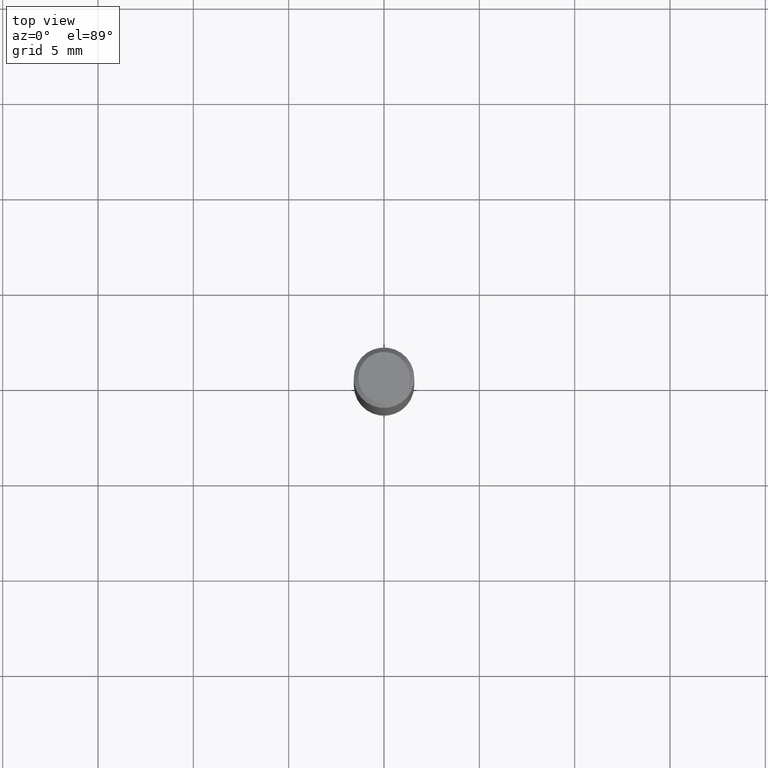
[diagram: clean part render]
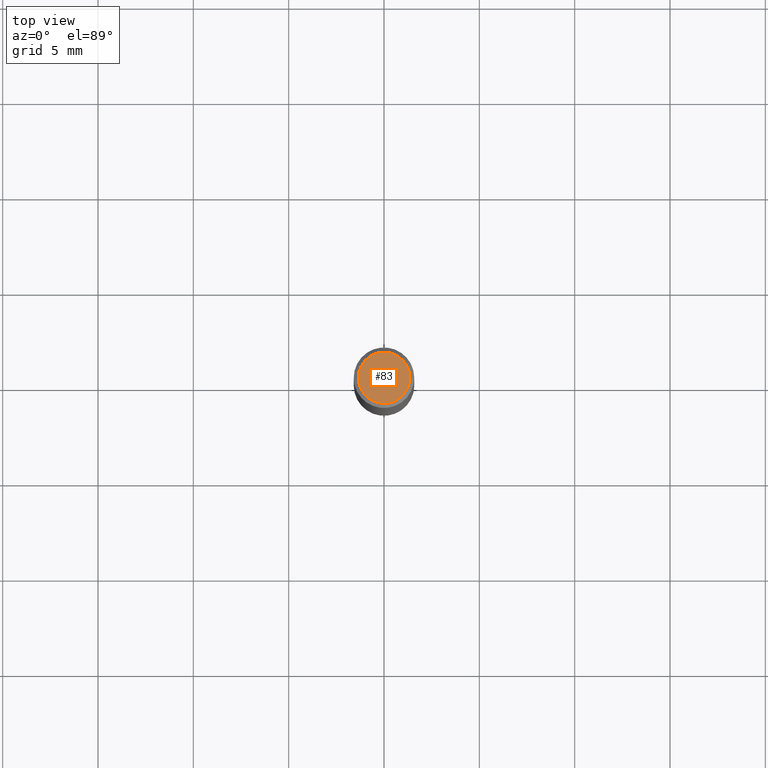
[diagram: same view with one face highlighted and labeled with its STEP entity id]
A machine part, top view. The second image highlights one B-rep face of the part: STEP entity #83.
In plain terms, the highlighted planar face has unit normal (0, -0, -1).
Its self-contained STEP definition (entity closure, byte-faithful):
#56 = VERTEX_POINT ( 'NONE', #113 ) ;
#76 = DIRECTION ( 'NONE',  ( -2.445468806185136597E-29, 3.491481338843145583E-15, 1.000000000000000000 ) ) ;
#83 = ADVANCED_FACE ( 'NONE', ( #534 ), #482, .F. ) ;
#113 = CARTESIAN_POINT ( 'NONE',  ( -0.05312499999999999861, 3.873362110279099094E-16, -5.787680772773044021E-18 ) ) ;
#175 = AXIS2_PLACEMENT_3D ( 'NONE', #203, #356, #573 ) ;
#176 = AXIS2_PLACEMENT_3D ( 'NONE', #271, #310, #496 ) ;
#203 = CARTESIAN_POINT ( 'NONE',  ( 7.076796394983739835E-47, -1.010378970665454992E-32, -2.893840386385196200E-18 ) ) ;
#256 = CARTESIAN_POINT ( 'NONE',  ( 0.05312499999999999861, -4.129888592719939842E-16, -5.787680772767651417E-18 ) ) ;
#265 = AXIS2_PLACEMENT_3D ( 'NONE', #570, #76, #431 ) ;
#271 = CARTESIAN_POINT ( 'NONE',  ( 1.415359278996747967E-46, -2.020757941330909984E-32, -5.787680772770392401E-18 ) ) ;
#310 = DIRECTION ( 'NONE',  ( -2.445468806185136597E-29, 3.491481338843145583E-15, 1.000000000000000000 ) ) ;
#327 = EDGE_CURVE ( 'NONE', #507, #56, #355, .T. ) ;
#355 = CIRCLE ( 'NONE', #176, 0.05312499999999999861 ) ;
#356 = DIRECTION ( 'NONE',  ( 2.438088387897960049E-29, -3.491481338843145188E-15, -1.000000000000000000 ) ) ;
#384 = ORIENTED_EDGE ( 'NONE', *, *, #327, .T. ) ;
#401 = ORIENTED_EDGE ( 'NONE', *, *, #589, .T. ) ;
#431 = DIRECTION ( 'NONE',  ( 1.000000000000000000, -6.982962677686266711E-15, 4.875930095424100059E-29 ) ) ;
#468 = CIRCLE ( 'NONE', #265, 0.05312499999999999861 ) ;
#482 = PLANE ( 'NONE',  #175 ) ;
#496 = DIRECTION ( 'NONE',  ( 1.000000000000000000, -6.982962677686266711E-15, 4.875930095424100059E-29 ) ) ;
#507 = VERTEX_POINT ( 'NONE', #256 ) ;
#534 = FACE_OUTER_BOUND ( 'NONE', #555, .T. ) ;
#555 = EDGE_LOOP ( 'NONE', ( #401, #384 ) ) ;
#570 = CARTESIAN_POINT ( 'NONE',  ( 1.415359278996747967E-46, -2.020757941330909984E-32, -5.787680772770392401E-18 ) ) ;
#573 = DIRECTION ( 'NONE',  ( -1.000000000000000000, 6.982962677686265922E-15, -4.876176775795935793E-29 ) ) ;
#589 = EDGE_CURVE ( 'NONE', #56, #507, #468, .T. ) ;